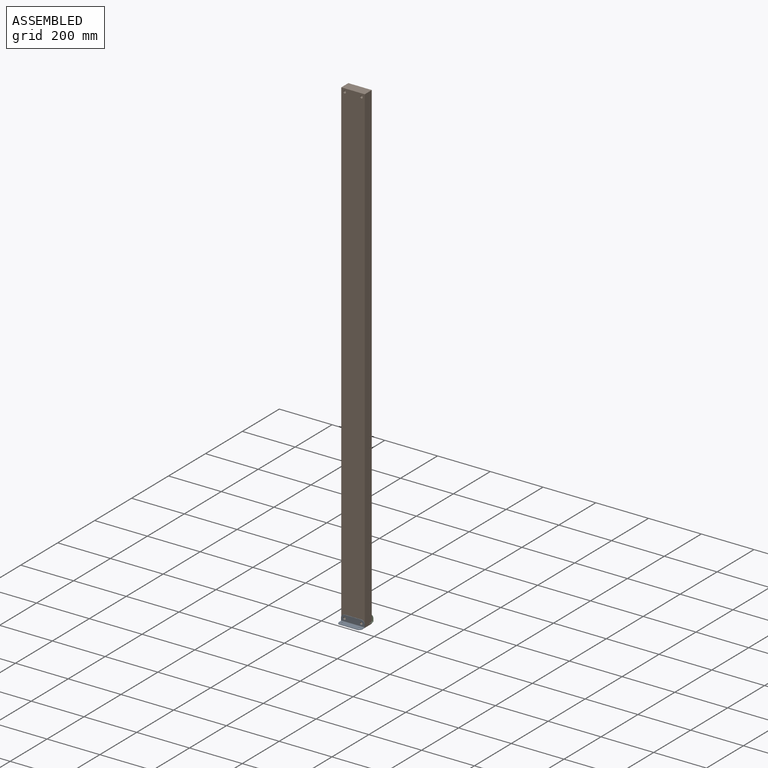
[diagram: assembled view]
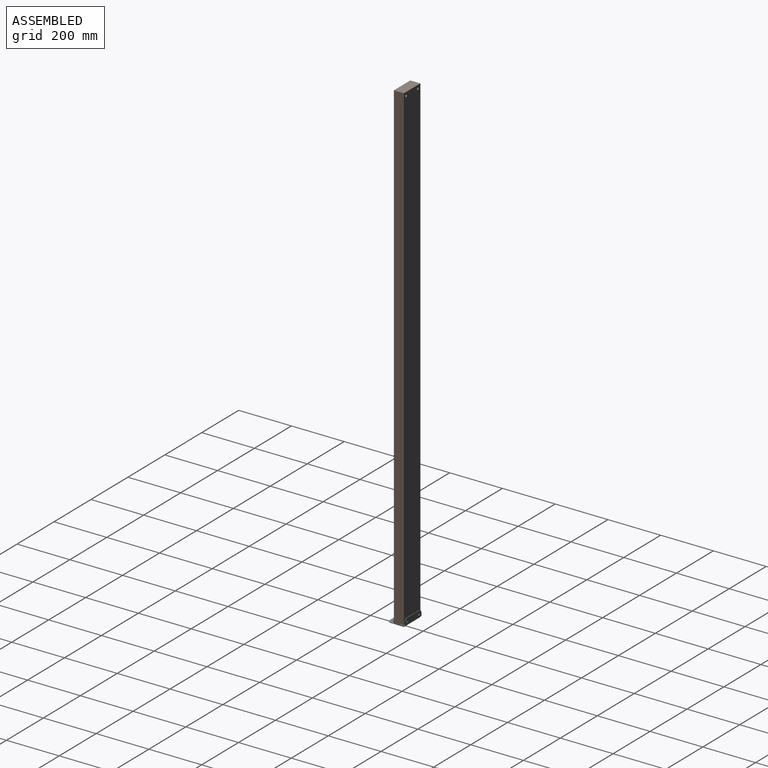
[diagram: assembled view, second angle]
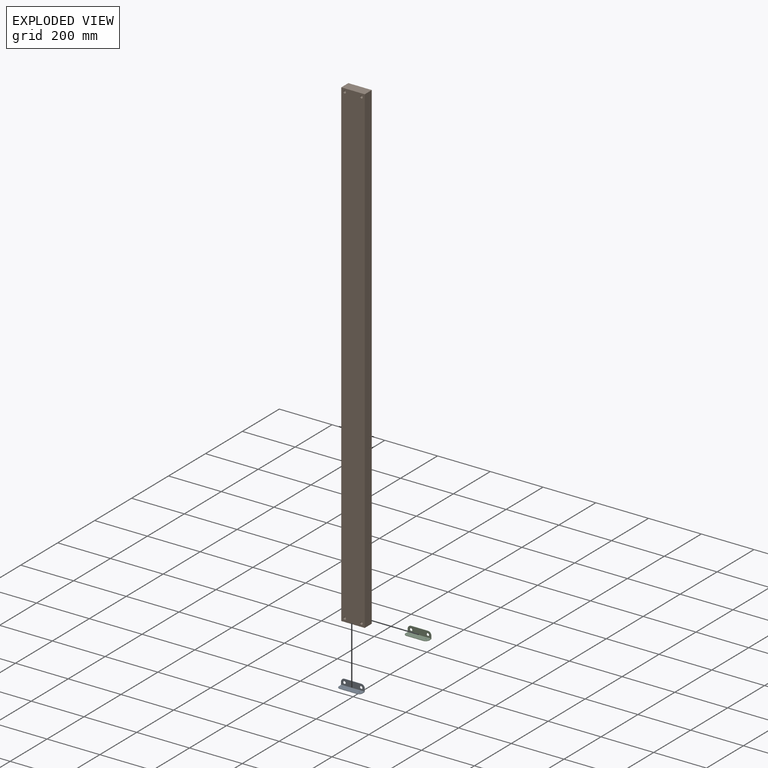
[diagram: exploded view]
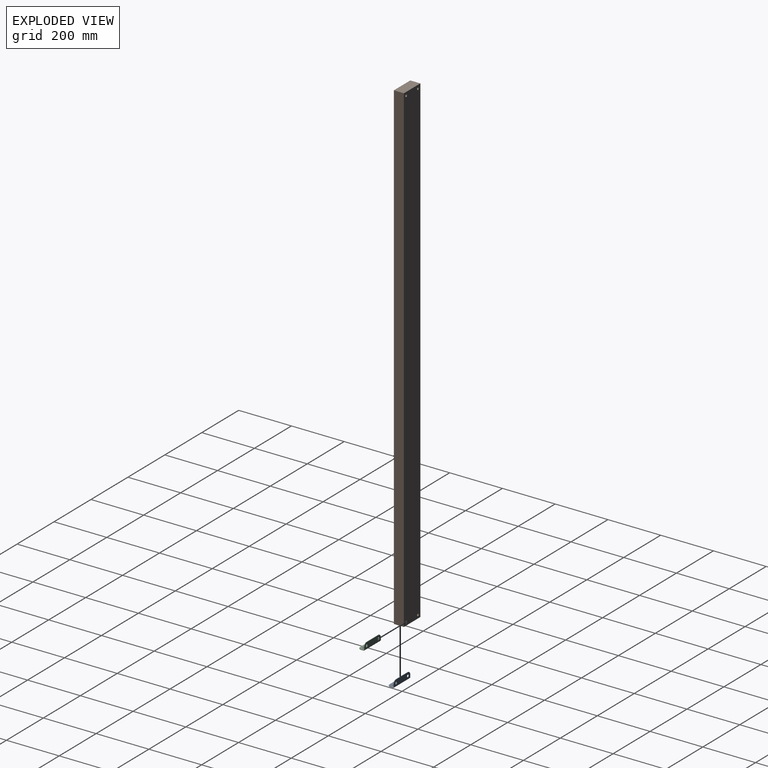
[diagram: exploded view, second angle]
ASSEMBLY  parts=3 mates=2
PART A: 18 faces, bbox 88.9x25.4x25.4 mm
  f0: plane 12.7x12.7mm, normal (-1,0,0), area 36.2mm2, adj f1,f4,f5,f6,f10,f11,f12,f15
  f1: plane 88.9x22.23mm, normal (0,0,-1), area 1870.9mm2, adj f0,f2,f7,f11,f12,f13,f16,f17
  f2: plane 12.7x12.7mm, normal (1,0,0), area 36.2mm2, adj f1,f4,f5,f6,f10,f11,f13,f14
  f3: plane 63.5x1.59mm, normal (0,0,1), area 100.8mm2, adj f4,f5,f14,f15
  f4: plane 88.9x22.23mm, normal (0,-1,0), area 1764.1mm2, adj f0,f2,f3,f8,f9,f10,f14,f15
  f5: plane 88.9x22.23mm, normal (0,1,0), area 1764.1mm2, adj f0,f2,f3,f8,f9,f11,f14,f15
  f6: plane 88.9x22.23mm, normal (0,0,1), area 1870.9mm2, adj f0,f2,f7,f10,f12,f13,f16,f17
  f7: plane 63.5x1.59mm, normal (0,-1,0), area 100.8mm2, adj f1,f6,f12,f13
  f8: cylinder r=4.76mm len=9.53mm, axis (0,-1,0), area 47.5mm2, adj f4,f5
  f9: cylinder r=4.76mm len=9.53mm, axis (0,-1,0), area 47.5mm2, adj f4,f5
  f10: cylinder r=1.59mm len=88.9mm, axis (1,0,0), area 221.7mm2, adj f0,f2,f4,f6
  f11: cylinder r=3.17mm len=88.9mm, axis (1,0,0), area 443.4mm2, adj f0,f1,f2,f5
  f12: cylinder r=12.7mm len=12.7mm, axis (0,0,-1), area 31.7mm2, adj f0,f1,f6,f7
  f13: cylinder r=12.7mm len=12.7mm, axis (0,0,1), area 31.7mm2, adj f1,f2,f6,f7
  f14: cylinder r=12.7mm len=12.7mm, axis (0,-1,0), area 31.7mm2, adj f2,f3,f4,f5
  f15: cylinder r=12.7mm len=12.7mm, axis (0,1,0), area 31.7mm2, adj f0,f3,f4,f5
  f16: cylinder r=2.38mm len=4.76mm, axis (0,0,1), area 23.8mm2, adj f1,f6
  f17: cylinder r=2.38mm len=4.76mm, axis (0,0,1), area 23.8mm2, adj f1,f6
PART B: 10 faces, bbox 88.9x38.1x1828.8 mm
  f0: plane 1828.8x38.1mm, normal (-1,0,0), area 69677.3mm2, adj f1,f3,f4,f5
  f1: plane 1828.8x88.9mm, normal (0,-1,0), area 162295.3mm2, adj f0,f2,f4,f5,f6,f7,f8,f9
  f2: plane 1828.8x38.1mm, normal (1,0,0), area 69677.3mm2, adj f1,f3,f4,f5
  f3: plane 1828.8x88.9mm, normal (0,1,0), area 162295.3mm2, adj f0,f2,f4,f5,f6,f7,f8,f9
  f4: plane 88.9x38.1mm, normal (0,0,1), area 3387.1mm2, adj f0,f1,f2,f3
  f5: plane 88.9x38.1mm, normal (0,0,-1), area 3387.1mm2, adj f0,f1,f2,f3
  f6: cylinder r=4.76mm len=38.1mm, axis (0,-1,0), area 1140.1mm2, adj f1,f3
  f7: cylinder r=4.76mm len=38.1mm, axis (0,-1,0), area 1140.1mm2, adj f1,f3
  f8: cylinder r=4.76mm len=38.1mm, axis (0,-1,0), area 1140.1mm2, adj f1,f3
  f9: cylinder r=4.76mm len=38.1mm, axis (0,-1,0), area 1140.1mm2, adj f1,f3
PART C: same geometry as A
PLACE A t=(-99.55,0,91.72)mm
PLACE B t=(-44.45,0,0)mm
PLACE C t=(-97.41,43.8,96.01)mm
MATE planar B.f5 <-> A.f1  axis (0,0,-1) through (0,19.05,0)mm
MATE planar B.f7 <-> A.f5  axis (0,-1,0) through (-31.75,0,12.7)mm
